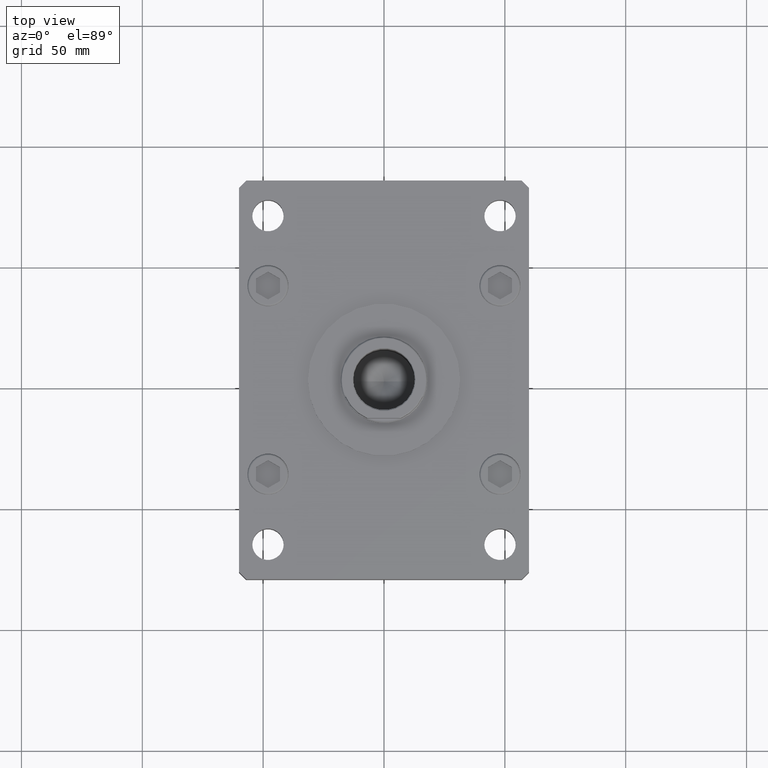
[diagram: clean part render]
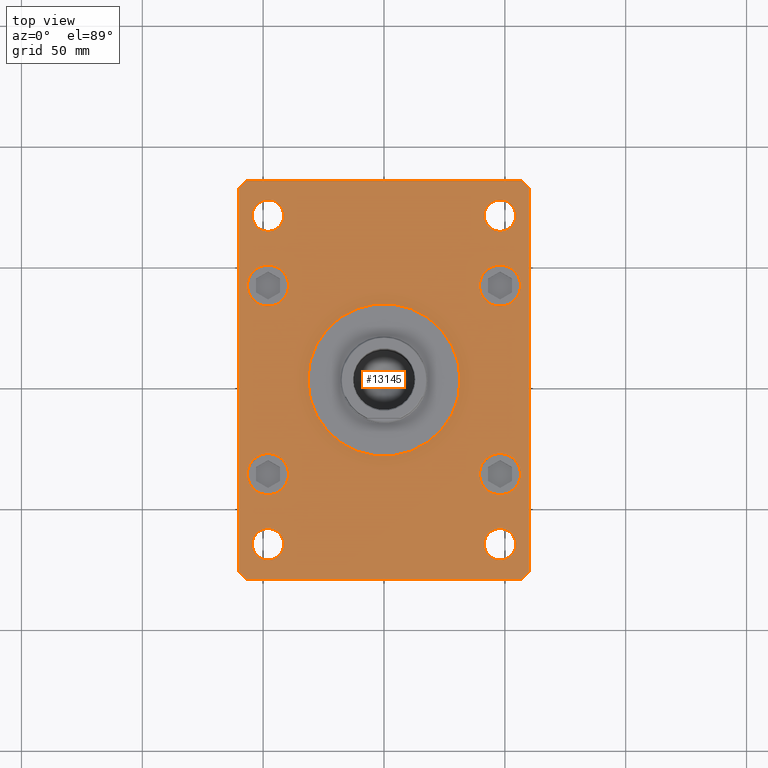
[diagram: same view with one face highlighted and labeled with its STEP entity id]
A machine part, top view. The second image highlights one B-rep face of the part: STEP entity #13145.
In plain terms, the highlighted planar face has unit normal (0, 0, 1).
Its self-contained STEP definition (entity closure, byte-faithful):
#128 = DIRECTION ( 'NONE',  ( 0.000000000000000000, 0.000000000000000000, 1.000000000000000000 ) ) ;
#609 = VECTOR ( 'NONE', #7181, 1000.000000000000114 ) ;
#709 = DIRECTION ( 'NONE',  ( 0.000000000000000000, 0.000000000000000000, 1.000000000000000000 ) ) ;
#807 = EDGE_CURVE ( 'NONE', #19106, #14456, #7619, .T. ) ;
#1174 = CARTESIAN_POINT ( 'NONE',  ( -56.99999999999999289, -82.50000000000001421, 20.00000000000000000 ) ) ;
#1203 = ORIENTED_EDGE ( 'NONE', *, *, #24087, .F. ) ;
#1333 = VERTEX_POINT ( 'NONE', #51166 ) ;
#1524 = VECTOR ( 'NONE', #52828, 1000.000000000000000 ) ;
#2593 = CIRCLE ( 'NONE', #11247, 31.50000000000000000 ) ;
#2605 = CARTESIAN_POINT ( 'NONE',  ( 48.00000000000000000, 67.99999999999998579, 20.00000000000000000 ) ) ;
#3155 = EDGE_CURVE ( 'NONE', #17331, #33173, #27871, .T. ) ;
#3458 = CARTESIAN_POINT ( 'NONE',  ( 47.99999999999997158, -68.00000000000001421, 20.00000000000000000 ) ) ;
#3476 = CIRCLE ( 'NONE', #7828, 6.500000000000005329 ) ;
#3686 = ORIENTED_EDGE ( 'NONE', *, *, #49319, .T. ) ;
#3828 = ORIENTED_EDGE ( 'NONE', *, *, #3155, .T. ) ;
#3855 = CARTESIAN_POINT ( 'NONE',  ( 48.00000000000000000, 38.99999999999999289, 20.00000000000000000 ) ) ;
#3926 = FACE_BOUND ( 'NONE', #51983, .T. ) ;
#3955 = EDGE_CURVE ( 'NONE', #36581, #40280, #34464, .T. ) ;
#4193 = FACE_BOUND ( 'NONE', #40975, .T. ) ;
#4244 = EDGE_CURVE ( 'NONE', #14456, #19106, #21431, .T. ) ;
#4294 = VECTOR ( 'NONE', #35786, 1000.000000000000114 ) ;
#4475 = DIRECTION ( 'NONE',  ( 0.000000000000000000, 0.000000000000000000, 1.000000000000000000 ) ) ;
#5173 = EDGE_CURVE ( 'NONE', #51868, #13359, #33640, .T. ) ;
#5318 = DIRECTION ( 'NONE',  ( 1.000000000000000000, 0.000000000000000000, 0.000000000000000000 ) ) ;
#5805 = CARTESIAN_POINT ( 'NONE',  ( 48.00000000000000000, -38.99999999999999289, 20.00000000000000000 ) ) ;
#5838 = CIRCLE ( 'NONE', #43187, 8.499999999999992895 ) ;
#5872 = AXIS2_PLACEMENT_3D ( 'NONE', #3855, #7143, #20457 ) ;
#5924 = EDGE_CURVE ( 'NONE', #40280, #36581, #32792, .T. ) ;
#6111 = DIRECTION ( 'NONE',  ( 0.000000000000000000, 0.000000000000000000, 1.000000000000000000 ) ) ;
#6156 = VERTEX_POINT ( 'NONE', #50633 ) ;
#6374 = CARTESIAN_POINT ( 'NONE',  ( -57.00000000000003553, 82.50000000000000000, 20.00000000000000000 ) ) ;
#6627 = LINE ( 'NONE', #52044, #38531 ) ;
#6856 = AXIS2_PLACEMENT_3D ( 'NONE', #3458, #10553, #44258 ) ;
#7143 = DIRECTION ( 'NONE',  ( 0.000000000000000000, 0.000000000000000000, 1.000000000000000000 ) ) ;
#7181 = DIRECTION ( 'NONE',  ( -0.7071067811865474617, -0.7071067811865474617, 0.000000000000000000 ) ) ;
#7206 = ORIENTED_EDGE ( 'NONE', *, *, #45162, .F. ) ;
#7415 = LINE ( 'NONE', #28091, #1524 ) ;
#7619 = CIRCLE ( 'NONE', #5872, 8.499999999999992895 ) ;
#7828 = AXIS2_PLACEMENT_3D ( 'NONE', #2605, #14574, #31683 ) ;
#7897 = EDGE_CURVE ( 'NONE', #6156, #53454, #2593, .T. ) ;
#8020 = PLANE ( 'NONE',  #21146 ) ;
#8490 = CIRCLE ( 'NONE', #38883, 31.50000000000000000 ) ;
#8594 = VERTEX_POINT ( 'NONE', #16906 ) ;
#9095 = DIRECTION ( 'NONE',  ( 1.000000000000000000, 0.000000000000000000, 0.000000000000000000 ) ) ;
#9283 = CARTESIAN_POINT ( 'NONE',  ( -41.49999999999999289, 68.00000000000001421, 20.00000000000000000 ) ) ;
#9509 = CARTESIAN_POINT ( 'NONE',  ( 39.50000000000000711, 38.99999999999999289, 20.00000000000000000 ) ) ;
#9528 = CARTESIAN_POINT ( 'NONE',  ( -41.49999999999996447, -68.00000000000001421, 20.00000000000000000 ) ) ;
#9568 = CARTESIAN_POINT ( 'NONE',  ( 60.00000000000000000, -79.49999999999990052, 20.00000000000000000 ) ) ;
#9651 = EDGE_CURVE ( 'NONE', #10131, #17331, #6627, .T. ) ;
#9746 = DIRECTION ( 'NONE',  ( 0.000000000000000000, 0.000000000000000000, 1.000000000000000000 ) ) ;
#9892 = EDGE_CURVE ( 'NONE', #13127, #1333, #25625, .T. ) ;
#10103 = DIRECTION ( 'NONE',  ( 1.000000000000000000, 0.000000000000000000, 0.000000000000000000 ) ) ;
#10131 = VERTEX_POINT ( 'NONE', #45429 ) ;
#10288 = AXIS2_PLACEMENT_3D ( 'NONE', #47009, #9746, #47542 ) ;
#10553 = DIRECTION ( 'NONE',  ( 0.000000000000000000, 0.000000000000000000, 1.000000000000000000 ) ) ;
#11247 = AXIS2_PLACEMENT_3D ( 'NONE', #32545, #24424, #52685 ) ;
#11468 = ORIENTED_EDGE ( 'NONE', *, *, #48516, .F. ) ;
#11815 = FACE_BOUND ( 'NONE', #29602, .T. ) ;
#11951 = DIRECTION ( 'NONE',  ( 0.7071067811865459074, 0.7071067811865491270, 0.000000000000000000 ) ) ;
#12088 = FACE_BOUND ( 'NONE', #45956, .T. ) ;
#12263 = VERTEX_POINT ( 'NONE', #20787 ) ;
#12277 = VERTEX_POINT ( 'NONE', #53409 ) ;
#12494 = CARTESIAN_POINT ( 'NONE',  ( 41.49999999999999289, 67.99999999999998579, 20.00000000000000000 ) ) ;
#12637 = CARTESIAN_POINT ( 'NONE',  ( -57.00000000000003553, 82.50000000000000000, 20.00000000000000000 ) ) ;
#12735 = CARTESIAN_POINT ( 'NONE',  ( -39.50000000000002132, 39.00000000000000000, 20.00000000000000000 ) ) ;
#13127 = VERTEX_POINT ( 'NONE', #18646 ) ;
#13145 = ADVANCED_FACE ( 'NONE', ( #40650, #12088, #3926, #11815, #33016, #28952, #4193, #28162, #45786, #45273 ), #8020, .T. ) ;
#13359 = VERTEX_POINT ( 'NONE', #44407 ) ;
#13615 = ORIENTED_EDGE ( 'NONE', *, *, #9892, .T. ) ;
#13638 = CARTESIAN_POINT ( 'NONE',  ( -31.50000000000000000, 0.000000000000000000, 20.00000000000000000 ) ) ;
#14269 = DIRECTION ( 'NONE',  ( 1.000000000000000000, 0.000000000000000000, 0.000000000000000000 ) ) ;
#14456 = VERTEX_POINT ( 'NONE', #40531 ) ;
#14569 = LINE ( 'NONE', #38504, #16330 ) ;
#14574 = DIRECTION ( 'NONE',  ( 0.000000000000000000, 0.000000000000000000, 1.000000000000000000 ) ) ;
#15060 = ORIENTED_EDGE ( 'NONE', *, *, #35858, .T. ) ;
#15484 = DIRECTION ( 'NONE',  ( 0.000000000000000000, 0.000000000000000000, 1.000000000000000000 ) ) ;
#15714 = CARTESIAN_POINT ( 'NONE',  ( -47.99999999999997158, -68.00000000000001421, 20.00000000000000000 ) ) ;
#15760 = DIRECTION ( 'NONE',  ( 1.000000000000000000, 0.000000000000000000, 0.000000000000000000 ) ) ;
#15908 = DIRECTION ( 'NONE',  ( 0.000000000000000000, 0.000000000000000000, 1.000000000000000000 ) ) ;
#16019 = ORIENTED_EDGE ( 'NONE', *, *, #21424, .F. ) ;
#16078 = DIRECTION ( 'NONE',  ( 1.000000000000000000, 0.000000000000000000, 0.000000000000000000 ) ) ;
#16330 = VECTOR ( 'NONE', #17572, 999.9999999999998863 ) ;
#16582 = VERTEX_POINT ( 'NONE', #12494 ) ;
#16628 = ORIENTED_EDGE ( 'NONE', *, *, #3955, .F. ) ;
#16906 = CARTESIAN_POINT ( 'NONE',  ( 54.50000000000000711, 67.99999999999998579, 20.00000000000000000 ) ) ;
#17103 = LINE ( 'NONE', #46745, #19841 ) ;
#17165 = DIRECTION ( 'NONE',  ( 0.000000000000000000, 0.000000000000000000, 1.000000000000000000 ) ) ;
#17169 = ORIENTED_EDGE ( 'NONE', *, *, #5173, .F. ) ;
#17264 = CARTESIAN_POINT ( 'NONE',  ( -48.00000000000000000, 68.00000000000001421, 20.00000000000000000 ) ) ;
#17331 = VERTEX_POINT ( 'NONE', #12637 ) ;
#17554 = ORIENTED_EDGE ( 'NONE', *, *, #5924, .F. ) ;
#17572 = DIRECTION ( 'NONE',  ( -0.7071067811865435759, 0.7071067811865515695, 0.000000000000000000 ) ) ;
#18275 = ORIENTED_EDGE ( 'NONE', *, *, #42422, .F. ) ;
#18646 = CARTESIAN_POINT ( 'NONE',  ( 60.00000000000000000, -79.49999999999990052, 20.00000000000000000 ) ) ;
#18736 = CARTESIAN_POINT ( 'NONE',  ( 39.50000000000000711, -38.99999999999999289, 20.00000000000000000 ) ) ;
#18866 = EDGE_CURVE ( 'NONE', #25682, #12263, #38676, .T. ) ;
#19106 = VERTEX_POINT ( 'NONE', #9509 ) ;
#19562 = EDGE_LOOP ( 'NONE', ( #26292, #41495 ) ) ;
#19841 = VECTOR ( 'NONE', #26364, 1000.000000000000000 ) ;
#20073 = DIRECTION ( 'NONE',  ( 1.000000000000000000, 0.000000000000000000, 0.000000000000000000 ) ) ;
#20185 = ORIENTED_EDGE ( 'NONE', *, *, #44957, .F. ) ;
#20457 = DIRECTION ( 'NONE',  ( 1.000000000000000000, 0.000000000000000000, 0.000000000000000000 ) ) ;
#20787 = CARTESIAN_POINT ( 'NONE',  ( -56.50000000000000711, 39.00000000000000000, 20.00000000000000000 ) ) ;
#21146 = AXIS2_PLACEMENT_3D ( 'NONE', #32736, #15908, #53423 ) ;
#21424 = EDGE_CURVE ( 'NONE', #13359, #51868, #22309, .T. ) ;
#21431 = CIRCLE ( 'NONE', #40567, 8.499999999999992895 ) ;
#22139 = DIRECTION ( 'NONE',  ( 0.000000000000000000, 0.000000000000000000, 1.000000000000000000 ) ) ;
#22226 = LINE ( 'NONE', #43147, #4294 ) ;
#22309 = CIRCLE ( 'NONE', #38797, 8.500000000000000000 ) ;
#23155 = CARTESIAN_POINT ( 'NONE',  ( -48.00000000000000711, -39.00000000000000000, 20.00000000000000000 ) ) ;
#23226 = DIRECTION ( 'NONE',  ( -1.000000000000000000, -2.434699615406043739E-16, 0.000000000000000000 ) ) ;
#23373 = CIRCLE ( 'NONE', #53748, 6.500000000000005329 ) ;
#23440 = DIRECTION ( 'NONE',  ( 0.000000000000000000, 0.000000000000000000, 1.000000000000000000 ) ) ;
#23605 = EDGE_LOOP ( 'NONE', ( #16019, #17169 ) ) ;
#24087 = EDGE_CURVE ( 'NONE', #50648, #42289, #5838, .T. ) ;
#24424 = DIRECTION ( 'NONE',  ( 0.000000000000000000, 0.000000000000000000, 1.000000000000000000 ) ) ;
#24936 = AXIS2_PLACEMENT_3D ( 'NONE', #51531, #6111, #14269 ) ;
#25320 = EDGE_CURVE ( 'NONE', #33173, #50521, #7415, .T. ) ;
#25513 = VERTEX_POINT ( 'NONE', #31797 ) ;
#25583 = DIRECTION ( 'NONE',  ( 0.000000000000000000, 0.000000000000000000, 1.000000000000000000 ) ) ;
#25625 = LINE ( 'NONE', #9568, #32430 ) ;
#25682 = VERTEX_POINT ( 'NONE', #12735 ) ;
#26001 = DIRECTION ( 'NONE',  ( 0.000000000000000000, 0.000000000000000000, 1.000000000000000000 ) ) ;
#26058 = EDGE_CURVE ( 'NONE', #1333, #10131, #14569, .T. ) ;
#26173 = DIRECTION ( 'NONE',  ( 4.364084216293856438E-17, 1.000000000000000000, 0.000000000000000000 ) ) ;
#26263 = EDGE_LOOP ( 'NONE', ( #18275, #51419 ) ) ;
#26292 = ORIENTED_EDGE ( 'NONE', *, *, #27108, .F. ) ;
#26364 = DIRECTION ( 'NONE',  ( 1.000000000000000000, 9.738798461624180871E-16, 0.000000000000000000 ) ) ;
#26727 = AXIS2_PLACEMENT_3D ( 'NONE', #23155, #23440, #45163 ) ;
#26798 = AXIS2_PLACEMENT_3D ( 'NONE', #5805, #22139, #30821 ) ;
#27108 = EDGE_CURVE ( 'NONE', #25513, #32730, #47613, .T. ) ;
#27420 = DIRECTION ( 'NONE',  ( 0.000000000000000000, 0.000000000000000000, 1.000000000000000000 ) ) ;
#27871 = LINE ( 'NONE', #6374, #609 ) ;
#28091 = CARTESIAN_POINT ( 'NONE',  ( -60.00000000000002842, 79.50000000000001421, 20.00000000000000000 ) ) ;
#28162 = FACE_BOUND ( 'NONE', #23605, .T. ) ;
#28271 = EDGE_CURVE ( 'NONE', #12277, #51370, #51016, .T. ) ;
#28897 = CARTESIAN_POINT ( 'NONE',  ( 48.00000000000000000, 38.99999999999999289, 20.00000000000000000 ) ) ;
#28952 = FACE_OUTER_BOUND ( 'NONE', #35943, .T. ) ;
#29127 = EDGE_CURVE ( 'NONE', #32730, #25513, #23373, .T. ) ;
#29550 = CARTESIAN_POINT ( 'NONE',  ( -48.00000000000001421, 39.00000000000000000, 20.00000000000000000 ) ) ;
#29602 = EDGE_LOOP ( 'NONE', ( #16628, #17554 ) ) ;
#29756 = VERTEX_POINT ( 'NONE', #1174 ) ;
#30260 = AXIS2_PLACEMENT_3D ( 'NONE', #29550, #709, #37174 ) ;
#30821 = DIRECTION ( 'NONE',  ( 1.000000000000000000, 0.000000000000000000, 0.000000000000000000 ) ) ;
#31683 = DIRECTION ( 'NONE',  ( 1.000000000000000000, 0.000000000000000000, 0.000000000000000000 ) ) ;
#31797 = CARTESIAN_POINT ( 'NONE',  ( -54.49999999999997868, -68.00000000000001421, 20.00000000000000000 ) ) ;
#31912 = CARTESIAN_POINT ( 'NONE',  ( 56.49999999999999289, -38.99999999999999289, 20.00000000000000000 ) ) ;
#32430 = VECTOR ( 'NONE', #26173, 1000.000000000000000 ) ;
#32545 = CARTESIAN_POINT ( 'NONE',  ( 0.000000000000000000, 0.000000000000000000, 20.00000000000000000 ) ) ;
#32607 = LINE ( 'NONE', #37239, #48658 ) ;
#32730 = VERTEX_POINT ( 'NONE', #9528 ) ;
#32736 = CARTESIAN_POINT ( 'NONE',  ( 0.000000000000000000, 0.000000000000000000, 20.00000000000000000 ) ) ;
#32792 = CIRCLE ( 'NONE', #44103, 6.500000000000005329 ) ;
#33016 = FACE_BOUND ( 'NONE', #19562, .T. ) ;
#33173 = VERTEX_POINT ( 'NONE', #44727 ) ;
#33640 = CIRCLE ( 'NONE', #26727, 8.500000000000000000 ) ;
#33750 = ORIENTED_EDGE ( 'NONE', *, *, #26058, .T. ) ;
#34011 = DIRECTION ( 'NONE',  ( 1.000000000000000000, 0.000000000000000000, 0.000000000000000000 ) ) ;
#34464 = CIRCLE ( 'NONE', #24936, 6.500000000000005329 ) ;
#34534 = CARTESIAN_POINT ( 'NONE',  ( 48.00000000000000000, 67.99999999999998579, 20.00000000000000000 ) ) ;
#34813 = EDGE_CURVE ( 'NONE', #16582, #8594, #46007, .T. ) ;
#34814 = ORIENTED_EDGE ( 'NONE', *, *, #9651, .T. ) ;
#34933 = CARTESIAN_POINT ( 'NONE',  ( 57.00000000000000711, -82.49999999999990052, 20.00000000000000000 ) ) ;
#35786 = DIRECTION ( 'NONE',  ( 0.7071067811865474617, -0.7071067811865474617, 0.000000000000000000 ) ) ;
#35858 = EDGE_CURVE ( 'NONE', #38667, #13127, #32607, .T. ) ;
#35943 = EDGE_LOOP ( 'NONE', ( #3686, #15060, #13615, #33750, #34814, #3828, #38279, #38375 ) ) ;
#36006 = ORIENTED_EDGE ( 'NONE', *, *, #34813, .F. ) ;
#36372 = EDGE_CURVE ( 'NONE', #8594, #16582, #3476, .T. ) ;
#36581 = VERTEX_POINT ( 'NONE', #45794 ) ;
#36746 = CARTESIAN_POINT ( 'NONE',  ( -48.00000000000001421, 39.00000000000000000, 20.00000000000000000 ) ) ;
#37174 = DIRECTION ( 'NONE',  ( 1.000000000000000000, 0.000000000000000000, 0.000000000000000000 ) ) ;
#37239 = CARTESIAN_POINT ( 'NONE',  ( 57.00000000000000711, -82.49999999999990052, 20.00000000000000000 ) ) ;
#37326 = ORIENTED_EDGE ( 'NONE', *, *, #4244, .F. ) ;
#37389 = CARTESIAN_POINT ( 'NONE',  ( -48.00000000000000711, -39.00000000000000000, 20.00000000000000000 ) ) ;
#38279 = ORIENTED_EDGE ( 'NONE', *, *, #25320, .T. ) ;
#38375 = ORIENTED_EDGE ( 'NONE', *, *, #50895, .T. ) ;
#38504 = CARTESIAN_POINT ( 'NONE',  ( 60.00000000000000711, 79.50000000000001421, 20.00000000000000000 ) ) ;
#38531 = VECTOR ( 'NONE', #23226, 1000.000000000000000 ) ;
#38667 = VERTEX_POINT ( 'NONE', #34933 ) ;
#38676 = CIRCLE ( 'NONE', #45594, 8.499999999999992895 ) ;
#38797 = AXIS2_PLACEMENT_3D ( 'NONE', #37389, #4475, #10103 ) ;
#38883 = AXIS2_PLACEMENT_3D ( 'NONE', #44031, #15484, #15760 ) ;
#39028 = ORIENTED_EDGE ( 'NONE', *, *, #807, .F. ) ;
#40280 = VERTEX_POINT ( 'NONE', #9283 ) ;
#40531 = CARTESIAN_POINT ( 'NONE',  ( 56.49999999999999289, 38.99999999999999289, 20.00000000000000000 ) ) ;
#40567 = AXIS2_PLACEMENT_3D ( 'NONE', #28897, #17165, #34011 ) ;
#40650 = FACE_BOUND ( 'NONE', #26263, .T. ) ;
#40806 = EDGE_LOOP ( 'NONE', ( #20185, #48239 ) ) ;
#40975 = EDGE_LOOP ( 'NONE', ( #36006, #50973 ) ) ;
#41495 = ORIENTED_EDGE ( 'NONE', *, *, #29127, .F. ) ;
#42289 = VERTEX_POINT ( 'NONE', #31912 ) ;
#42422 = EDGE_CURVE ( 'NONE', #53454, #6156, #8490, .T. ) ;
#42575 = CARTESIAN_POINT ( 'NONE',  ( 48.00000000000000000, -38.99999999999999289, 20.00000000000000000 ) ) ;
#43147 = CARTESIAN_POINT ( 'NONE',  ( -59.99999999999998579, -79.50000000000002842, 20.00000000000000000 ) ) ;
#43187 = AXIS2_PLACEMENT_3D ( 'NONE', #42575, #26001, #5318 ) ;
#43874 = EDGE_LOOP ( 'NONE', ( #39028, #37326 ) ) ;
#44031 = CARTESIAN_POINT ( 'NONE',  ( 0.000000000000000000, 0.000000000000000000, 20.00000000000000000 ) ) ;
#44103 = AXIS2_PLACEMENT_3D ( 'NONE', #17264, #46345, #9095 ) ;
#44258 = DIRECTION ( 'NONE',  ( 1.000000000000000000, 0.000000000000000000, 0.000000000000000000 ) ) ;
#44407 = CARTESIAN_POINT ( 'NONE',  ( -56.50000000000000711, -39.00000000000000000, 20.00000000000000000 ) ) ;
#44727 = CARTESIAN_POINT ( 'NONE',  ( -60.00000000000002842, 79.50000000000001421, 20.00000000000000000 ) ) ;
#44957 = EDGE_CURVE ( 'NONE', #51370, #12277, #51976, .T. ) ;
#45024 = CIRCLE ( 'NONE', #26798, 8.499999999999992895 ) ;
#45027 = CIRCLE ( 'NONE', #30260, 8.499999999999992895 ) ;
#45162 = EDGE_CURVE ( 'NONE', #12263, #25682, #45027, .T. ) ;
#45163 = DIRECTION ( 'NONE',  ( 1.000000000000000000, 0.000000000000000000, 0.000000000000000000 ) ) ;
#45273 = FACE_BOUND ( 'NONE', #40806, .T. ) ;
#45429 = CARTESIAN_POINT ( 'NONE',  ( 57.00000000000002132, 82.50000000000002842, 20.00000000000000000 ) ) ;
#45594 = AXIS2_PLACEMENT_3D ( 'NONE', #36746, #53330, #16078 ) ;
#45676 = CARTESIAN_POINT ( 'NONE',  ( -59.99999999999998579, -79.50000000000002842, 20.00000000000000000 ) ) ;
#45786 = FACE_BOUND ( 'NONE', #43874, .T. ) ;
#45794 = CARTESIAN_POINT ( 'NONE',  ( -54.50000000000000711, 68.00000000000001421, 20.00000000000000000 ) ) ;
#45956 = EDGE_LOOP ( 'NONE', ( #7206, #52250 ) ) ;
#46007 = CIRCLE ( 'NONE', #48618, 6.500000000000005329 ) ;
#46330 = CARTESIAN_POINT ( 'NONE',  ( -47.99999999999997158, -68.00000000000001421, 20.00000000000000000 ) ) ;
#46345 = DIRECTION ( 'NONE',  ( 0.000000000000000000, 0.000000000000000000, 1.000000000000000000 ) ) ;
#46503 = DIRECTION ( 'NONE',  ( 1.000000000000000000, 0.000000000000000000, 0.000000000000000000 ) ) ;
#46745 = CARTESIAN_POINT ( 'NONE',  ( -56.99999999999999289, -82.50000000000001421, 20.00000000000000000 ) ) ;
#46753 = AXIS2_PLACEMENT_3D ( 'NONE', #46330, #128, #53702 ) ;
#47009 = CARTESIAN_POINT ( 'NONE',  ( 47.99999999999997158, -68.00000000000001421, 20.00000000000000000 ) ) ;
#47542 = DIRECTION ( 'NONE',  ( 1.000000000000000000, 0.000000000000000000, 0.000000000000000000 ) ) ;
#47613 = CIRCLE ( 'NONE', #46753, 6.500000000000005329 ) ;
#48239 = ORIENTED_EDGE ( 'NONE', *, *, #28271, .F. ) ;
#48516 = EDGE_CURVE ( 'NONE', #42289, #50648, #45024, .T. ) ;
#48618 = AXIS2_PLACEMENT_3D ( 'NONE', #34534, #25583, #46503 ) ;
#48658 = VECTOR ( 'NONE', #11951, 1000.000000000000114 ) ;
#49038 = CARTESIAN_POINT ( 'NONE',  ( 41.49999999999996447, -68.00000000000001421, 20.00000000000000000 ) ) ;
#49319 = EDGE_CURVE ( 'NONE', #29756, #38667, #17103, .T. ) ;
#49382 = CARTESIAN_POINT ( 'NONE',  ( -39.50000000000000711, -39.00000000000000000, 20.00000000000000000 ) ) ;
#50521 = VERTEX_POINT ( 'NONE', #45676 ) ;
#50633 = CARTESIAN_POINT ( 'NONE',  ( 31.50000000000000000, 3.857637417314162689E-15, 20.00000000000000000 ) ) ;
#50648 = VERTEX_POINT ( 'NONE', #18736 ) ;
#50895 = EDGE_CURVE ( 'NONE', #50521, #29756, #22226, .T. ) ;
#50973 = ORIENTED_EDGE ( 'NONE', *, *, #36372, .F. ) ;
#51016 = CIRCLE ( 'NONE', #6856, 6.500000000000005329 ) ;
#51166 = CARTESIAN_POINT ( 'NONE',  ( 60.00000000000000711, 79.50000000000001421, 20.00000000000000000 ) ) ;
#51370 = VERTEX_POINT ( 'NONE', #49038 ) ;
#51419 = ORIENTED_EDGE ( 'NONE', *, *, #7897, .F. ) ;
#51531 = CARTESIAN_POINT ( 'NONE',  ( -48.00000000000000000, 68.00000000000001421, 20.00000000000000000 ) ) ;
#51868 = VERTEX_POINT ( 'NONE', #49382 ) ;
#51976 = CIRCLE ( 'NONE', #10288, 6.500000000000005329 ) ;
#51983 = EDGE_LOOP ( 'NONE', ( #1203, #11468 ) ) ;
#52044 = CARTESIAN_POINT ( 'NONE',  ( 57.00000000000002132, 82.50000000000002842, 20.00000000000000000 ) ) ;
#52250 = ORIENTED_EDGE ( 'NONE', *, *, #18866, .F. ) ;
#52685 = DIRECTION ( 'NONE',  ( 1.000000000000000000, 0.000000000000000000, 0.000000000000000000 ) ) ;
#52828 = DIRECTION ( 'NONE',  ( 2.618450529776312260E-16, -1.000000000000000000, 0.000000000000000000 ) ) ;
#53330 = DIRECTION ( 'NONE',  ( 0.000000000000000000, 0.000000000000000000, 1.000000000000000000 ) ) ;
#53409 = CARTESIAN_POINT ( 'NONE',  ( 54.49999999999997868, -68.00000000000001421, 20.00000000000000000 ) ) ;
#53423 = DIRECTION ( 'NONE',  ( 1.000000000000000000, 0.000000000000000000, -0.000000000000000000 ) ) ;
#53454 = VERTEX_POINT ( 'NONE', #13638 ) ;
#53702 = DIRECTION ( 'NONE',  ( 1.000000000000000000, 0.000000000000000000, 0.000000000000000000 ) ) ;
#53748 = AXIS2_PLACEMENT_3D ( 'NONE', #15714, #27420, #20073 ) ;